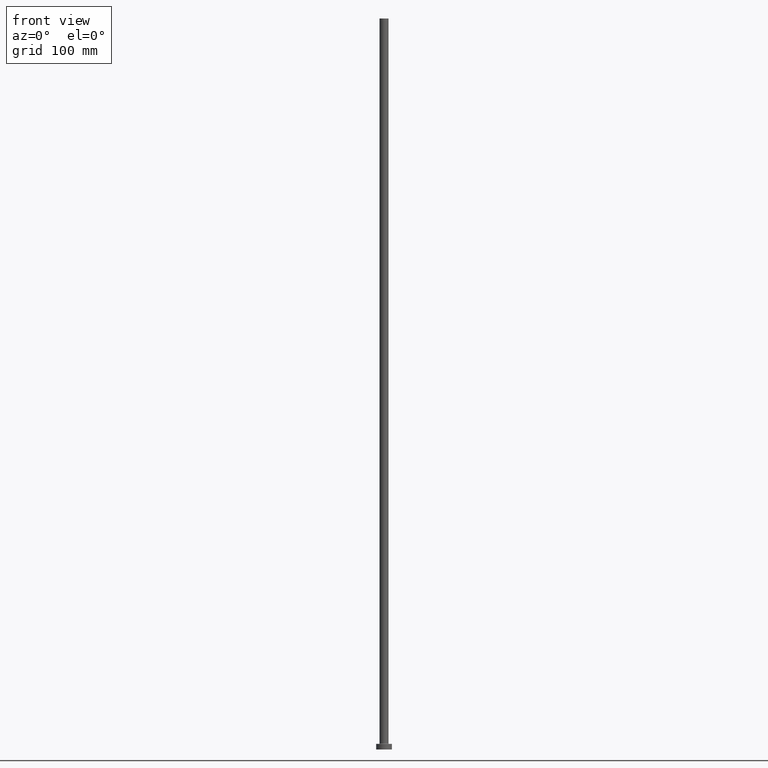
[diagram: clean part render]
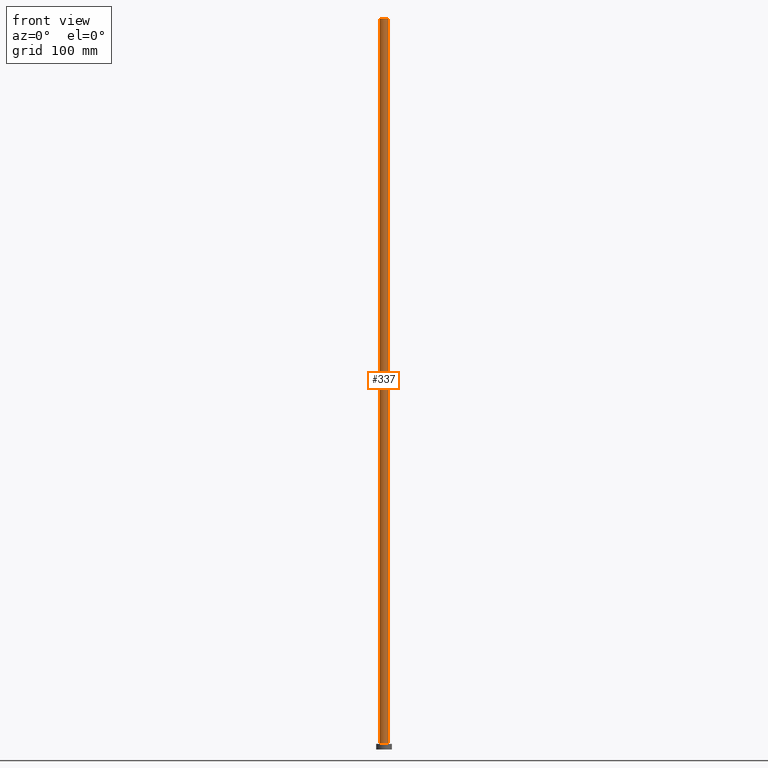
[diagram: same view with one face highlighted and labeled with its STEP entity id]
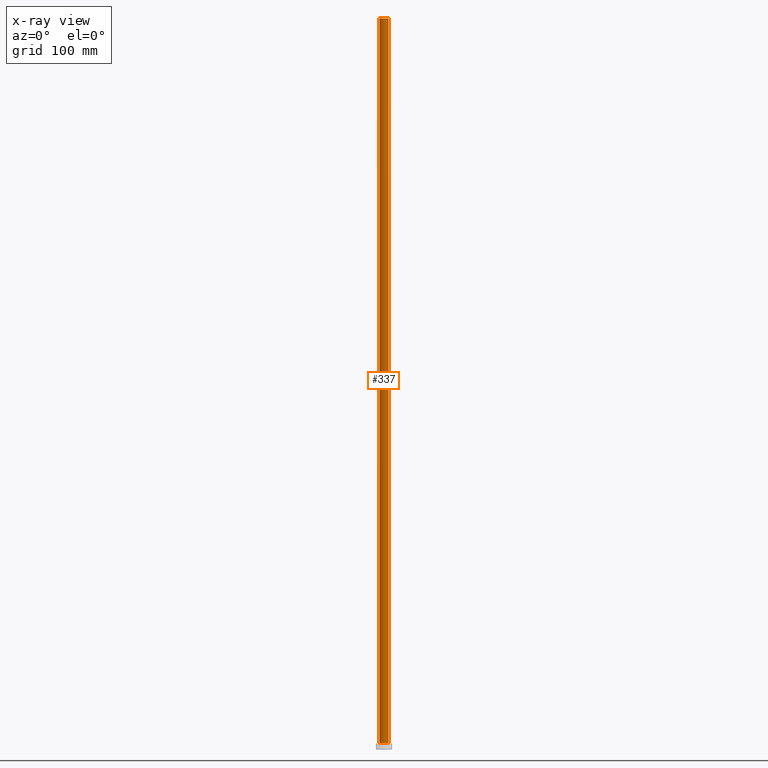
[diagram: x-ray of the same camera — body ghosted, the highlighted face saturated]
A machine part, front view. The second image highlights one B-rep face of the part: STEP entity #337.
The next image is the same camera in x-ray: the body ghosted, the highlighted face saturated — about 0% of this face is hidden behind the body in this view.
In plain terms, the highlighted cylindrical surface (edge-blend (fillet) strip) has radius 4 mm, axis along (-0, -0, -1).
Its self-contained STEP definition (entity closure, byte-faithful):
#10 = EDGE_CURVE ( 'NONE', #198, #122, #230, .T. ) ;
#19 = VERTEX_POINT ( 'NONE', #379 ) ;
#26 = FACE_OUTER_BOUND ( 'NONE', #141, .T. ) ;
#31 = EDGE_CURVE ( 'NONE', #198, #19, #193, .T. ) ;
#45 = DIRECTION ( 'NONE',  ( 1.000000000000000000, 0.000000000000000000, 0.000000000000000000 ) ) ;
#49 = ORIENTED_EDGE ( 'NONE', *, *, #10, .T. ) ;
#66 = ORIENTED_EDGE ( 'NONE', *, *, #31, .F. ) ;
#75 = EDGE_CURVE ( 'NONE', #122, #453, #284, .T. ) ;
#91 = CARTESIAN_POINT ( 'NONE',  ( 4.000000000000000000, 4.898587196589411843E-16, 650.0000000000000000 ) ) ;
#122 = VERTEX_POINT ( 'NONE', #181 ) ;
#141 = EDGE_LOOP ( 'NONE', ( #418, #66, #49, #175 ) ) ;
#143 = DIRECTION ( 'NONE',  ( -0.000000000000000000, -0.000000000000000000, -1.000000000000000000 ) ) ;
#150 = AXIS2_PLACEMENT_3D ( 'NONE', #292, #290, #45 ) ;
#157 = DIRECTION ( 'NONE',  ( 1.000000000000000000, 0.000000000000000000, 0.000000000000000000 ) ) ;
#171 = CYLINDRICAL_SURFACE ( 'NONE', #364, 4.000000000000000000 ) ;
#175 = ORIENTED_EDGE ( 'NONE', *, *, #75, .T. ) ;
#181 = CARTESIAN_POINT ( 'NONE',  ( -4.000000000000000000, 0.000000000000000000, 5.499999999999949374 ) ) ;
#193 = CIRCLE ( 'NONE', #237, 4.000000000000000000 ) ;
#198 = VERTEX_POINT ( 'NONE', #376 ) ;
#204 = VECTOR ( 'NONE', #380, 1000.000000000000000 ) ;
#205 = CARTESIAN_POINT ( 'NONE',  ( -4.000000000000000000, 0.000000000000000000, 650.0000000000000000 ) ) ;
#230 = LINE ( 'NONE', #205, #321 ) ;
#237 = AXIS2_PLACEMENT_3D ( 'NONE', #326, #315, #157 ) ;
#270 = EDGE_CURVE ( 'NONE', #19, #453, #437, .T. ) ;
#277 = DIRECTION ( 'NONE',  ( -0.000000000000000000, -0.000000000000000000, -1.000000000000000000 ) ) ;
#284 = CIRCLE ( 'NONE', #150, 4.000000000000000000 ) ;
#290 = DIRECTION ( 'NONE',  ( 0.000000000000000000, 0.000000000000000000, 1.000000000000000000 ) ) ;
#292 = CARTESIAN_POINT ( 'NONE',  ( 0.000000000000000000, 0.000000000000000000, 5.499999999999949374 ) ) ;
#315 = DIRECTION ( 'NONE',  ( 0.000000000000000000, 0.000000000000000000, 1.000000000000000000 ) ) ;
#321 = VECTOR ( 'NONE', #143, 1000.000000000000000 ) ;
#326 = CARTESIAN_POINT ( 'NONE',  ( 0.000000000000000000, 0.000000000000000000, 650.0000000000000000 ) ) ;
#337 = ADVANCED_FACE ( 'NONE', ( #26 ), #171, .T. ) ;
#354 = CARTESIAN_POINT ( 'NONE',  ( 4.000000000000000000, 4.898587196589411843E-16, 5.499999999999949374 ) ) ;
#364 = AXIS2_PLACEMENT_3D ( 'NONE', #424, #277, #454 ) ;
#376 = CARTESIAN_POINT ( 'NONE',  ( -4.000000000000000000, 0.000000000000000000, 650.0000000000000000 ) ) ;
#379 = CARTESIAN_POINT ( 'NONE',  ( 4.000000000000000000, 4.898587196589411843E-16, 650.0000000000000000 ) ) ;
#380 = DIRECTION ( 'NONE',  ( -0.000000000000000000, -0.000000000000000000, -1.000000000000000000 ) ) ;
#418 = ORIENTED_EDGE ( 'NONE', *, *, #270, .F. ) ;
#424 = CARTESIAN_POINT ( 'NONE',  ( 0.000000000000000000, 0.000000000000000000, 650.0000000000000000 ) ) ;
#437 = LINE ( 'NONE', #91, #204 ) ;
#453 = VERTEX_POINT ( 'NONE', #354 ) ;
#454 = DIRECTION ( 'NONE',  ( -1.000000000000000000, 0.000000000000000000, 0.000000000000000000 ) ) ;